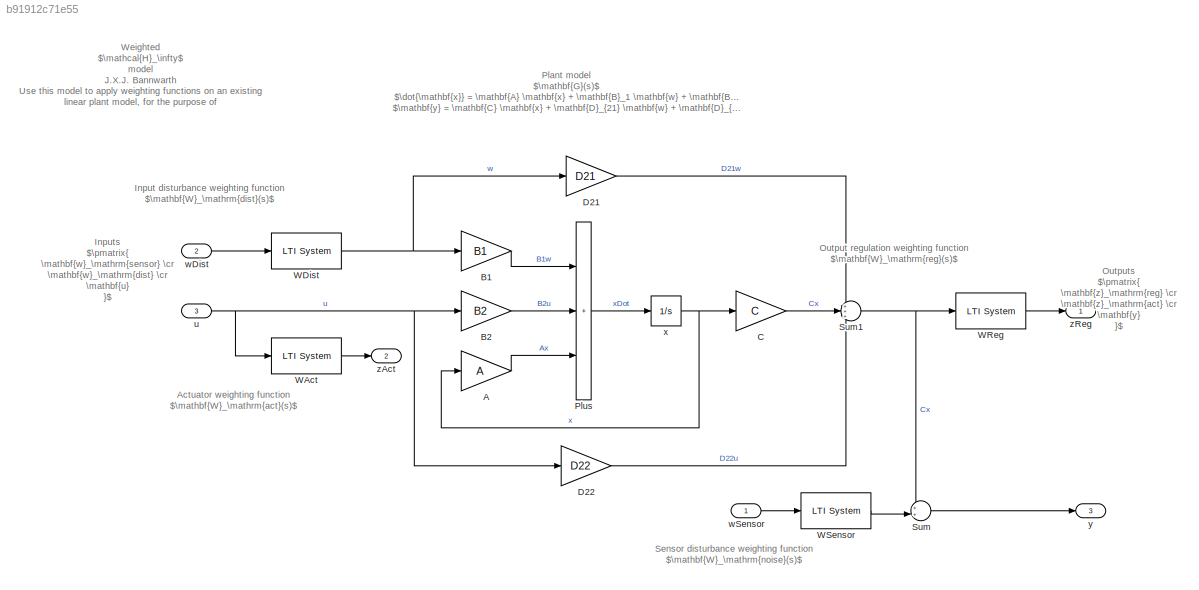
MODEL slx_b91912c71e55
KIND model
CONFIG AbsTol = auto
CONFIG EnableMultiTasking = off
CONFIG FixedStep = auto
CONFIG MaxStep = auto
CONFIG MinStep = auto
CONFIG RelTol = 1e-3
CONFIG SampleTimeConstraint = Unconstrained
CONFIG SolverName = VariableStepAuto
CONFIG StartTime = 0.0
CONFIG StopTime = 10.0
BLOCK [Gain] A
  Gain = A
  Multiplication = Matrix(K*u)
BLOCK [Gain] B1
  Gain = B1
  Multiplication = Matrix(K*u)
BLOCK [Gain] B2
  Gain = B2
  Multiplication = Matrix(K*u)
BLOCK [Gain] C
  Gain = C
  Multiplication = Matrix(K*u)
BLOCK [Gain] D21
  Gain = D21
  Multiplication = Matrix(K*u)
BLOCK [Gain] D22
  Gain = D22
  Multiplication = Matrix(K*u)
BLOCK [Sum] Plus
  IconShape = rectangular
  Inputs = +++
  Ports = [3, 1]
BLOCK [Sum] Sum
  Inputs = ++|
  Ports = [2, 1]
BLOCK [Sum] Sum1
  Inputs = +++
  Ports = [3, 1]
BLOCK [Reference] WAct  REF=cstblocks/LTI System
  Ports = [1, 1]
  SourceBlock = cstblocks/LTI System
  SourceProductBaseCode = CT
  SourceType = LTI Block
BLOCK [Reference] WDist  REF=cstblocks/LTI System
  Ports = [1, 1]
  SourceBlock = cstblocks/LTI System
  SourceProductBaseCode = CT
  SourceType = LTI Block
BLOCK [Reference] WReg  REF=cstblocks/LTI System
  Ports = [1, 1]
  SourceBlock = cstblocks/LTI System
  SourceProductBaseCode = CT
  SourceType = LTI Block
BLOCK [Reference] WSensor  REF=cstblocks/LTI System
  Ports = [1, 1]
  SourceBlock = cstblocks/LTI System
  SourceProductBaseCode = CT
  SourceType = LTI Block
BLOCK [Inport] u
  Port = 3
BLOCK [Inport] wDist
  Port = 2
BLOCK [Inport] wSensor
BLOCK [Integrator] x
  ContinuousStateAttributes = G.StateName
  Ports = [1, 1]
BLOCK [Outport] y
  Port = 3
  VectorParamsAs1DForOutWhenUnconnected = off
BLOCK [Outport] zAct
  Port = 2
  VectorParamsAs1DForOutWhenUnconnected = off
BLOCK [Outport] zReg
  VectorParamsAs1DForOutWhenUnconnected = off
ANNOTATION (root): Plant model $\mathbf{G}(s)$ $\dot{\mathbf{x}} = \mathbf{A} \mathbf{x} + \mathbf{B}_1 \mathbf{w} + \mathbf{B}_2 \mathbf{u}$ $\mathbf{y} = \mathbf{C} \mathbf{x} + \mathbf{D}_{21} \mathbf{w} + \mathbf{D}_{22} \mathbf{u}$
ANNOTATION (root): Actuator weighting function $\mathbf{W}_\mathrm{act}(s)$
ANNOTATION (root): Input disturbance weighting function $\mathbf{W}_\mathrm{dist}(s)$
ANNOTATION (root): Inputs $\pmatrix{ \mathbf{w}_\mathrm{sensor} \cr \mathbf{w}_\mathrm{dist} \cr \mathbf{u} }$
ANNOTATION (root): Output regulation weighting function $\mathbf{W}_\mathrm{reg}(s)$
ANNOTATION (root): Outputs $\pmatrix{ \mathbf{z}_\mathrm{reg} \cr \mathbf{z}_\mathrm{act} \cr \mathbf{y} }$
ANNOTATION (root): Sensor disturbance weighting function $\mathbf{W}_\mathrm{noise}(s)$
ANNOTATION (root): Weighted $\mathcal{H}_\infty$ model J.X.J. Bannwarth Use this model to apply weighting functions on an existing linear plant model, for the purpose of $\mathcal{H}_\infty$ control design.
LINE A:1 -> Plus:3
LINE B1:1 -> Plus:1
LINE B2:1 -> Plus:2
LINE C:1 -> Sum1:2
LINE D21:1 -> Sum1:1
LINE D22:1 -> Sum1:3
LINE Plus:1 -> x:1
NET Sum1:1 -> Sum:1, WReg:1
LINE Sum:1 -> y:1
LINE WAct:1 -> zAct:1
NET WDist:1 -> B1:1, D21:1
LINE WReg:1 -> zReg:1
LINE WSensor:1 -> Sum:2
NET u:1 -> B2:1, D22:1, WAct:1
LINE wDist:1 -> WDist:1
LINE wSensor:1 -> WSensor:1
NET x:1 -> A:1, C:1
note: NET lines group one-source signal fan-out (src -> all destinations, sorted); 1:1 wires keep LINE
